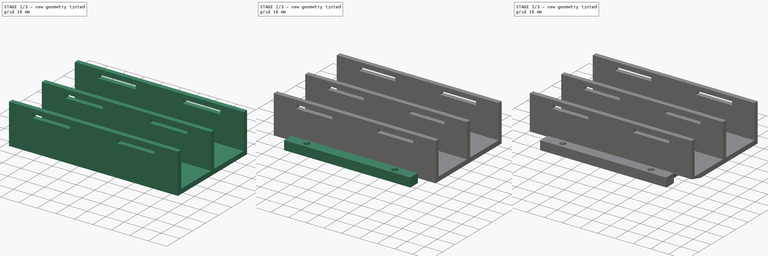
[diagram: build sequence overview — one tinted view per stage of 3, left to right]
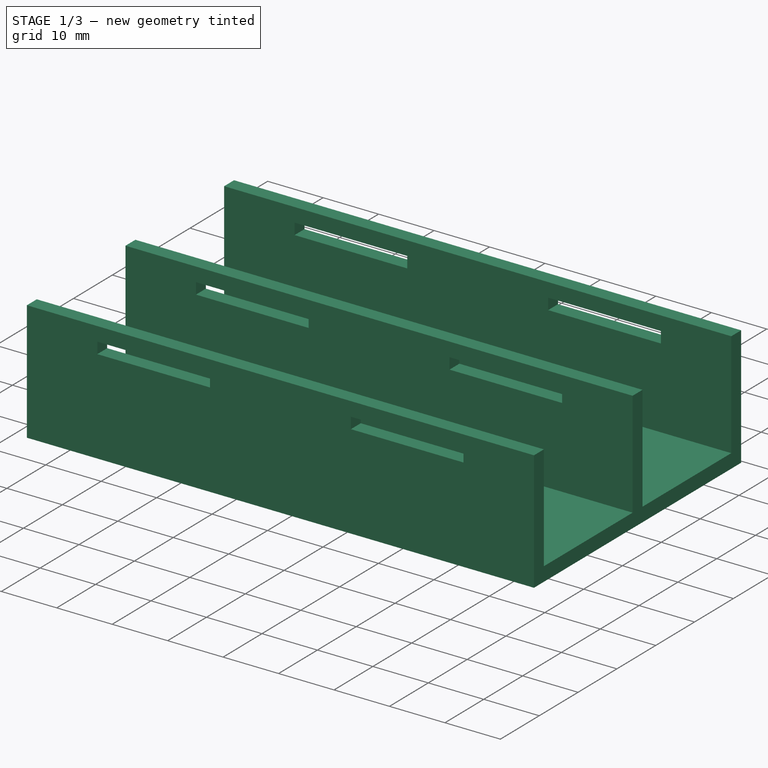
[diagram: stage 1 of 3 — iso view after this stage's code; geometry added in this stage tinted green]
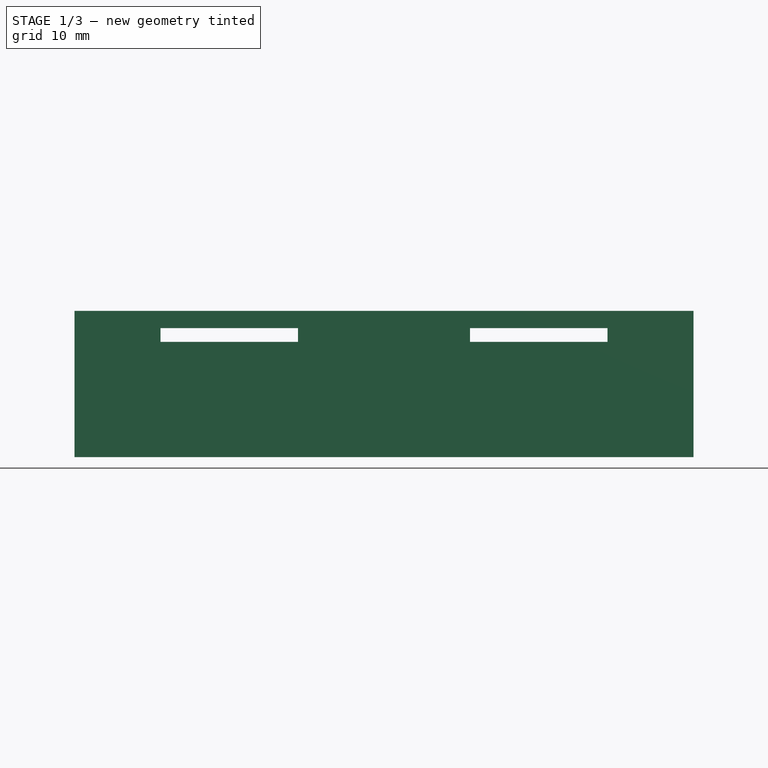
[diagram: stage 1 of 3 — front view after this stage's code; geometry added in this stage tinted green]
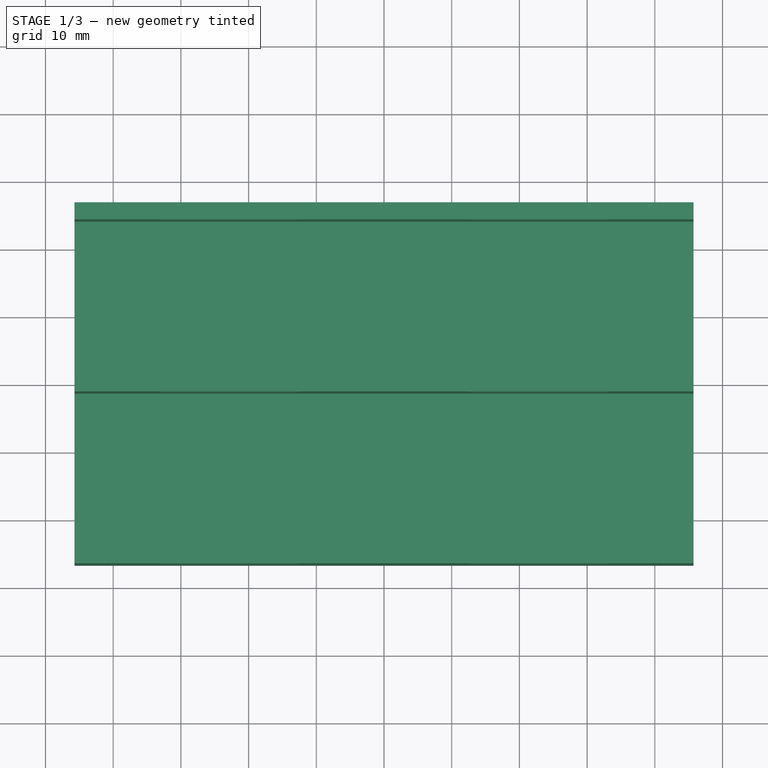
[diagram: stage 1 of 3 — top view after this stage's code; geometry added in this stage tinted green]
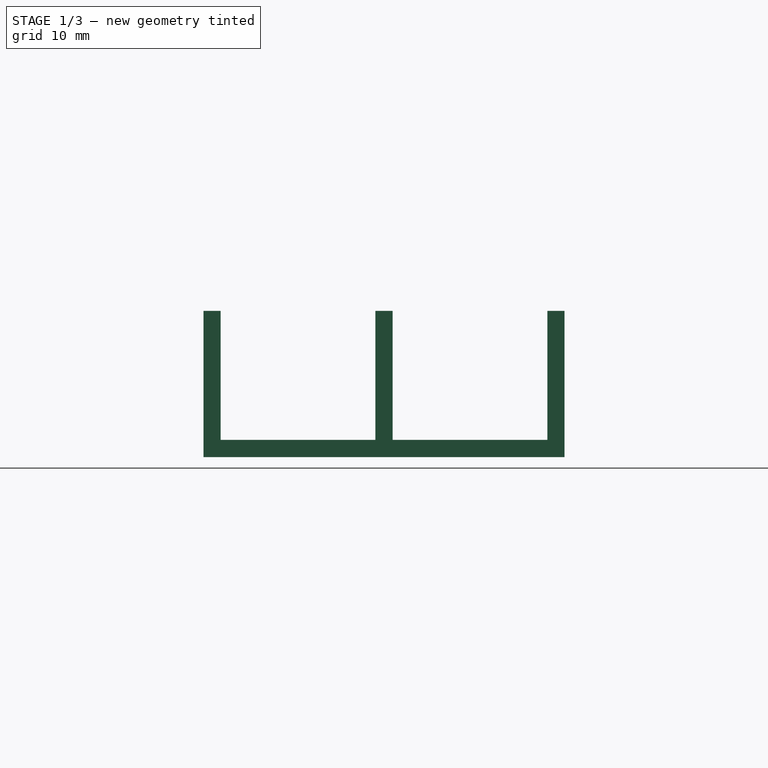
[diagram: stage 1 of 3 — right view after this stage's code; geometry added in this stage tinted green]
FCSTD DOCUMENT  (FreeCAD 1.0R39109 (Git))
Label: Rear Battery Mounts
License: All rights reserved
LicenseURL: https://en.wikipedia.org/wiki/All_rights_reserved
objects: Sketcher::SketchObject×6, PartDesign::Pad×3, PartDesign::Hole×2, PartDesign::Pocket×1, PartDesign::Chamfer×1, PartDesign::Body×1
note: 34 computed .brp shape members not serialized (recipe doc carries the construction recipe); baked Part::Feature solids carry a one-line shape summary decoded from their .brp

FEATURE [Sketcher::SketchObject] Sketch
  ArcFitTolerance = 1e-06
  AttachmentSupport = -> [YZ_Plane]
  FullyConstrained = true
  MakeInternals = false
  MapMode = 5
  Placement = pos=(0,0,0) rot=(0.57735,0.57735,0.57735;2.0944rad)
  sketch-geometry (14):
    g0: LineSegment StartX=-26.67 StartY=21.59 StartZ=0 EndX=-26.67 EndY=0 EndZ=0
    g1: LineSegment StartX=-26.67 StartY=0 StartZ=0 EndX=26.67 EndY=0 EndZ=0
    g2: LineSegment StartX=26.67 StartY=0 StartZ=0 EndX=26.67 EndY=21.59 EndZ=0
    g3: LineSegment StartX=26.67 StartY=21.59 StartZ=0 EndX=24.13 EndY=21.59 EndZ=0
    g4: LineSegment StartX=24.13 StartY=21.59 StartZ=0 EndX=24.13 EndY=2.54 EndZ=0
    g5: LineSegment StartX=24.13 StartY=2.54 StartZ=0 EndX=1.27 EndY=2.54 EndZ=0
    g6: LineSegment StartX=1.27 StartY=2.54 StartZ=0 EndX=1.27 EndY=21.59 EndZ=0
    g7: LineSegment StartX=1.27 StartY=21.59 StartZ=0 EndX=-1.27 EndY=21.59 EndZ=0
    g8: LineSegment StartX=-1.27 StartY=21.59 StartZ=0 EndX=-1.27 EndY=2.54 EndZ=0
    g9: LineSegment StartX=-1.27 StartY=2.54 StartZ=0 EndX=-24.13 EndY=2.54 EndZ=0
    g10: LineSegment StartX=-24.13 StartY=2.54 StartZ=0 EndX=-24.13 EndY=21.59 EndZ=0
    g11: LineSegment StartX=-26.67 StartY=21.59 StartZ=0 EndX=-24.13 EndY=21.59 EndZ=0
    g12: LineSegment [constr] StartX=-24.13 StartY=2.54 StartZ=0 EndX=-24.13 EndY=0 EndZ=0
    g13: GeomPoint [constr] X=0 Y=21.59 Z=0
  constraints (38):
    c: PointOnObject(g0,g-1)
    c: Vertical(g0)
    c: Coincident(g1,g0)
    c: PointOnObject(g1,g-1)
    c: Coincident(g2,g1)
    c: Vertical(g2)
    c: Coincident(g3,g2)
    c: Horizontal(g3)
    c: Coincident(g4,g3)
    c: Vertical(g4)
    c: Coincident(g5,g4)
    c: Horizontal(g5)
    c: Coincident(g6,g5)
    c: Vertical(g6)
    c: Coincident(g7,g6)
    c: Coincident(g8,g7)
    c: Vertical(g8)
    c: Coincident(g9,g8)
    c: Horizontal(g9)
    c: Coincident(g10,g9)
    c: Vertical(g10)
    c: Coincident(g11,g0)
    c: Coincident(g11,g10)
    c: Equal(g11,g7)
    c: Equal(g7,g3)
    c: Tangent(g11,g7)
    c: Tangent(g7,g3)
    c: Equal(g9,g5)
    c: Equal(g10,g6)
    c: Coincident(g12,g9)
    c: PointOnObject(g12,g1)
    c: Vertical(g12)
    c: Equal(g12,g11)
    c: Symmetric(g7,g7,g13)
    c: Vertical(g-1,g13)
    c: DistanceX(g9,g9) = 22.86
    c: DistanceX(g11,g11) = 2.54
    c: DistanceY(g10,g10) = 19.05
FEATURE [PartDesign::Pad] Pad
  Direction = (1,0,0)
  Length = 45.72
  Length2 = 45.72
  Placement = pos=(0,0,0) rot=(1,1,1;2.0944rad)
  Profile = -> Sketch
  ReferenceAxis = -> Sketch [N_Axis]
  Refine = true
  Suppressed = false
  Type = 4
FEATURE [Sketcher::SketchObject] Sketch001
  ArcFitTolerance = 1e-06
  AttachmentSupport = -> [Pad]
  ExternalGeometry = -> [Pad]
  FullyConstrained = true
  MakeInternals = false
  MapMode = 5
  Placement = pos=(-5.9e-15,-26.67,0) rot=(0.57735,0.57735,-0.57735;2.0944rad)
  sketch-geometry (15):
    g0: LineSegment StartX=-19.05 StartY=-33.02 StartZ=0 EndX=-17.018 EndY=-33.02 EndZ=0
    g1: LineSegment StartX=-17.018 StartY=-33.02 StartZ=0 EndX=-17.018 EndY=-12.7 EndZ=0
    g2: LineSegment StartX=-17.018 StartY=-12.7 StartZ=0 EndX=-19.05 EndY=-12.7 EndZ=0
    g3: LineSegment StartX=-19.05 StartY=-12.7 StartZ=0 EndX=-19.05 EndY=-33.02 EndZ=0
    g4: LineSegment StartX=-19.05 StartY=12.7 StartZ=0 EndX=-17.018 EndY=12.7 EndZ=0
    g5: LineSegment StartX=-17.018 StartY=12.7 StartZ=0 EndX=-17.018 EndY=33.02 EndZ=0
    g6: LineSegment StartX=-17.018 StartY=33.02 StartZ=0 EndX=-19.05 EndY=33.02 EndZ=0
    g7: LineSegment StartX=-19.05 StartY=33.02 StartZ=0 EndX=-19.05 EndY=12.7 EndZ=0
    g8: LineSegment [constr] StartX=-19.05 StartY=-12.7 StartZ=0 EndX=-19.05 EndY=12.7 EndZ=0
    g9: LineSegment [constr] StartX=-19.05 StartY=12.7 StartZ=0 EndX=-21.59 EndY=12.7 EndZ=0
    g10: LineSegment [constr] StartX=-21.59 StartY=12.7 StartZ=0 EndX=-21.59 EndY=-12.7 EndZ=0
    g11: LineSegment [constr] StartX=-21.59 StartY=-12.7 StartZ=0 EndX=-19.05 EndY=-12.7 EndZ=0
    g12: GeomPoint [constr] X=-21.59 Y=3.2e-15 Z=0
    g13: LineSegment [constr] StartX=-17.018 StartY=-33.02 StartZ=0 EndX=-17.018 EndY=-45.72 EndZ=0
    g14: LineSegment [constr] StartX=-17.018 StartY=-12.7 StartZ=0 EndX=-17.018 EndY=0 EndZ=0
  constraints (40):
    c: Coincident(g0,g1)
    c: Coincident(g1,g2)
    c: Coincident(g2,g3)
    c: Coincident(g3,g0)
    c: Horizontal(g0)
    c: Horizontal(g2)
    c: Vertical(g1)
    c: Vertical(g3)
    c: Coincident(g4,g5)
    c: Coincident(g5,g6)
    c: Coincident(g6,g7)
    c: Coincident(g7,g4)
    c: Horizontal(g4)
    c: Horizontal(g6)
    c: Vertical(g5)
    c: Vertical(g7)
    c: Equal(g3,g7)
    c: Equal(g4,g2)
    c: Coincident(g8,g9)
    c: Coincident(g9,g10)
    c: Coincident(g10,g11)
    c: Coincident(g11,g8)
    c: Vertical(g8)
    c: Vertical(g10)
    c: Horizontal(g9)
    c: Horizontal(g11)
    c: Coincident(g8,g2)
    c: Coincident(g8,g4)
    c: DistanceX(g0,g0) = 2.032
    c: DistanceY(g3,g3) = 20.32
    c: Symmetric(g10,g10,g12)
    c: Symmetric(g-3,g-3,g12)
    c: Coincident(g13,g0)
    c: Vertical(g13)
    c: Coincident(g14,g1)
    c: PointOnObject(g14,g-1)
    c: Vertical(g14)
    c: PointOnObject(g13,g-4)
    c: Equal(g13,g14)
    c: DistanceX(g11,g11) = 2.54
FEATURE [PartDesign::Pocket] Pocket
  BaseFeature = -> Pad
  Direction = (0,1,0)
  Length = 5
  Length2 = 5
  Placement = pos=(0,0,0) rot=(1,1,1;2.0944rad)
  Profile = -> Sketch001
  ReferenceAxis = -> Sketch001 [N_Axis]
  Refine = true
  Suppressed = false
  Type = 1
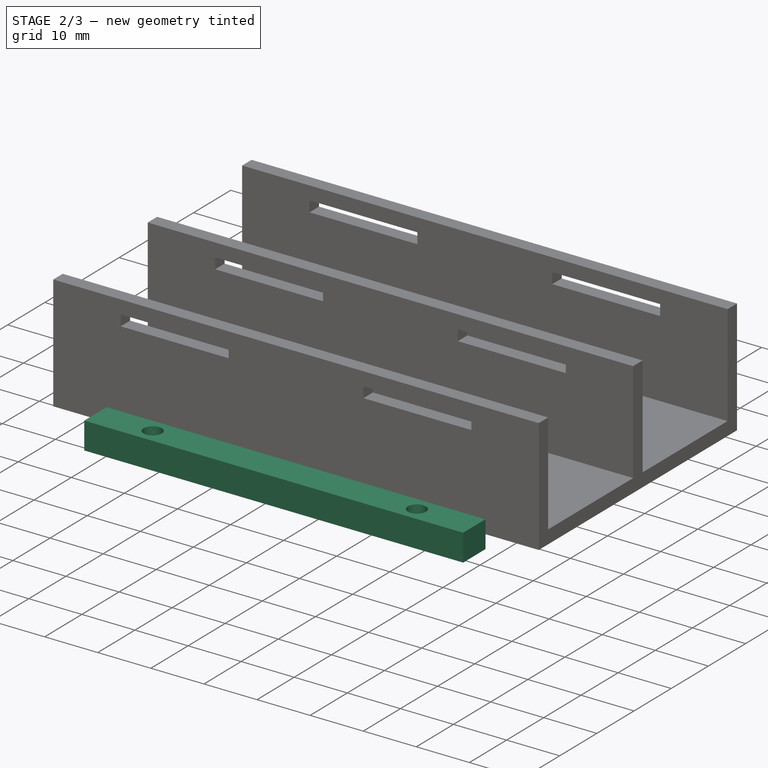
[diagram: stage 2 of 3 — iso view after this stage's code; geometry added in this stage tinted green]
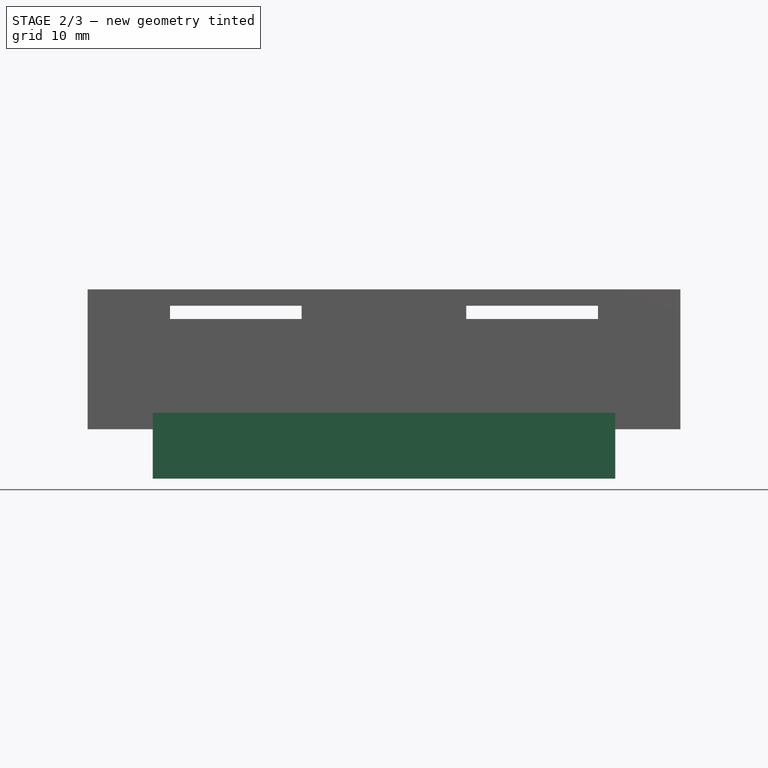
[diagram: stage 2 of 3 — front view after this stage's code; geometry added in this stage tinted green]
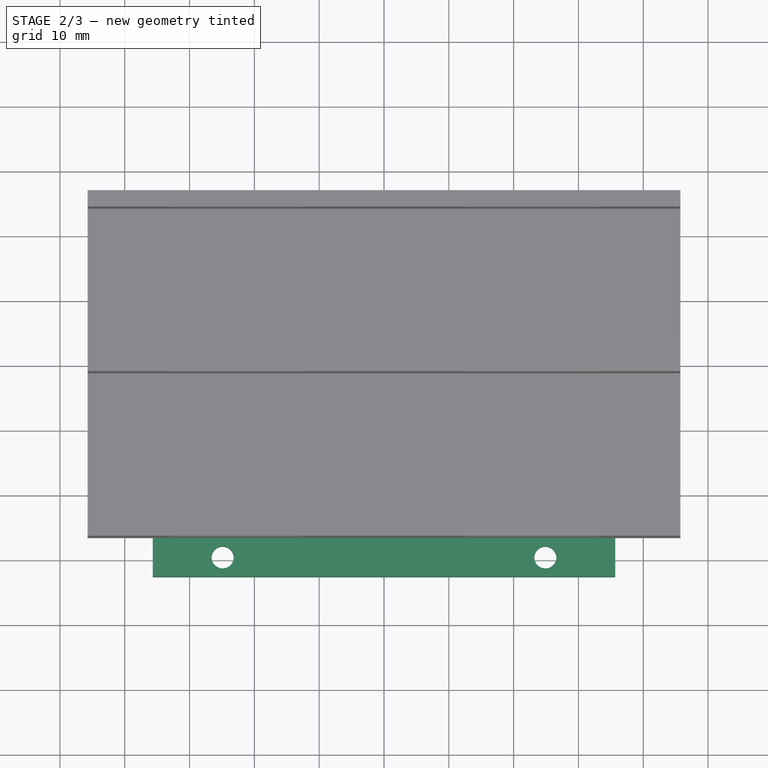
[diagram: stage 2 of 3 — top view after this stage's code; geometry added in this stage tinted green]
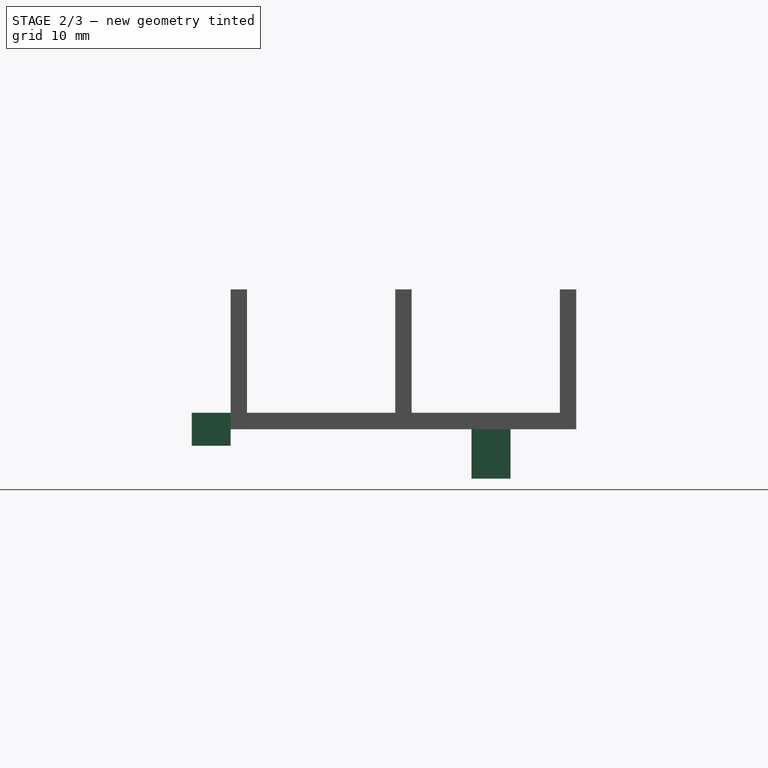
[diagram: stage 2 of 3 — right view after this stage's code; geometry added in this stage tinted green]
FEATURE [Sketcher::SketchObject] Sketch002
  ArcFitTolerance = 1e-06
  AttachmentSupport = -> [Pocket]
  ExternalGeometry = -> [Pocket]
  FullyConstrained = true
  MakeInternals = false
  MapMode = 5
  Placement = pos=(0,0,1.61e-14) rot=(0.707107,0.707107,0;3.14159rad)
  sketch-geometry (5):
    g0: LineSegment StartX=-26.67 StartY=35.687 StartZ=0 EndX=-32.67 EndY=35.687 EndZ=0
    g1: LineSegment StartX=-32.67 StartY=35.687 StartZ=0 EndX=-32.67 EndY=-35.687 EndZ=0
    g2: LineSegment StartX=-32.67 StartY=-35.687 StartZ=0 EndX=-26.67 EndY=-35.687 EndZ=0
    g3: LineSegment StartX=-26.67 StartY=-35.687 StartZ=0 EndX=-26.67 EndY=35.687 EndZ=0
    g4: GeomPoint [constr] X=-26.67 Y=5.2e-15 Z=0
  constraints (12):
    c: Coincident(g0,g1)
    c: Coincident(g1,g2)
    c: Coincident(g2,g3)
    c: Coincident(g3,g0)
    c: Horizontal(g0)
    c: Horizontal(g2)
    c: Vertical(g1)
    c: Vertical(g3)
    c: Symmetric(g3,g3,g4)
    c: Symmetric(g-3,g-3,g4)
    c: DistanceX(g2,g2) = 6
    c: DistanceY(g1,g1) = 71.374
FEATURE [PartDesign::Pad] Pad001
  BaseFeature = -> Pocket
  Direction = (0,0,-1)
  Length = 2.54
  Length2 = 2.54
  Placement = pos=(0,0,0) rot=(1,1,1;2.0944rad)
  Profile = -> Sketch002
  ReferenceAxis = -> Sketch002 [N_Axis]
  Refine = true
  Reversed = true
  Suppressed = false
  Type = 4
FEATURE [Sketcher::SketchObject] Sketch003
  ArcFitTolerance = 1e-06
  AttachmentSupport = -> [Pad001]
  ExternalGeometry = -> [Pad001]
  FullyConstrained = true
  MakeInternals = false
  MapMode = 5
  Placement = pos=(-8e-16,3e-16,2.54) rot=(0,0,-1;1.5708rad)
  sketch-geometry (5):
    g0: Circle CenterX=29.67 CenterY=-24.892 CenterZ=0 NormalX=0 NormalY=0 NormalZ=1 AngleXU=0 Radius=1.5
    g1: Circle CenterX=29.67 CenterY=24.892 CenterZ=0 NormalX=0 NormalY=0 NormalZ=1 AngleXU=0 Radius=1.5
    g2: LineSegment [constr] StartX=29.67 StartY=24.892 StartZ=0 EndX=29.67 EndY=-24.892 EndZ=0
    g3: LineSegment [constr] StartX=26.67 StartY=-2.5e-14 StartZ=0 EndX=32.67 EndY=-4.6e-15 EndZ=0
    g4: GeomPoint [constr] X=29.67 Y=-1.48e-14 Z=0
  constraints (10):
    c: Coincident(g2,g1)
    c: Coincident(g2,g0)
    c: Vertical(g2)
    c: Symmetric(g-4,g-4,g3)
    c: Symmetric(g-3,g-3,g3)
    c: Symmetric(g2,g2,g4)
    c: Symmetric(g3,g3,g4)
    c: Equal(g0,g1)
    c: Diameter(g0) = 3
    c: DistanceY(g2,g2) = 49.784
FEATURE [PartDesign::Hole] Hole
  BaseFeature = -> Pad001
  CustomThreadClearance = 0
  Depth = 224.471
  DepthType = 1
  Diameter = 3.4
  DrillForDepth = false
  DrillPoint = 1
  DrillPointAngle = 118
  HoleCutCountersinkAngle = 90
  HoleCutCustomValues = false
  HoleCutDepth = 0
  HoleCutDiameter = 0
  HoleCutType = 0
  ModelThread = false
  Placement = pos=(0,0,0) rot=(1,1,1;2.0944rad)
  Profile = -> Sketch003
  Refine = true
  Suppressed = false
  Tapered = false
  TaperedAngle = 90
  ThreadClass = 0
  ThreadDepth = 224.471
  ThreadDepthType = 0
  ThreadDirection = 0
  ThreadFit = 0
  ThreadSize = 9
  ThreadType = 1
  Threaded = false
  UseCustomThreadClearance = false
FEATURE [Sketcher::SketchObject] Sketch004
  ArcFitTolerance = 1e-06
  AttachmentSupport = -> [Hole]
  ExternalGeometry = -> [Hole]
  FullyConstrained = true
  MakeInternals = false
  MapMode = 5
  Placement = pos=(0,0,4.83e-14) rot=(0.707107,0.707107,0;3.14159rad)
  sketch-geometry (4):
    g0: LineSegment StartX=10.51 StartY=35.687 StartZ=0 EndX=10.51 EndY=-35.687 EndZ=0
    g1: LineSegment StartX=10.51 StartY=-35.687 StartZ=0 EndX=16.51 EndY=-35.687 EndZ=0
    g2: LineSegment StartX=16.51 StartY=-35.687 StartZ=0 EndX=16.51 EndY=35.687 EndZ=0
    g3: LineSegment StartX=16.51 StartY=35.687 StartZ=0 EndX=10.51 EndY=35.687 EndZ=0
  constraints (12):
    c: Coincident(g0,g1)
    c: Coincident(g1,g2)
    c: Coincident(g2,g3)
    c: Coincident(g3,g0)
    c: Vertical(g0)
    c: Vertical(g2)
    c: Horizontal(g1)
    c: Horizontal(g3)
    c: PointOnObject(g-3,g1)
    c: PointOnObject(g-3,g3)
    c: Equal(g-4,g3)
    c: Distance(g0,g-3) = 43.18
FEATURE [PartDesign::Pad] Pad002
  BaseFeature = -> Hole
  Direction = (0,0,-1)
  Length = 7.62
  Length2 = 10
  Placement = pos=(0,0,0) rot=(1,1,1;2.0944rad)
  Profile = -> Sketch004
  ReferenceAxis = -> Sketch004 [N_Axis]
  Refine = true
  Suppressed = false
  Type = 0
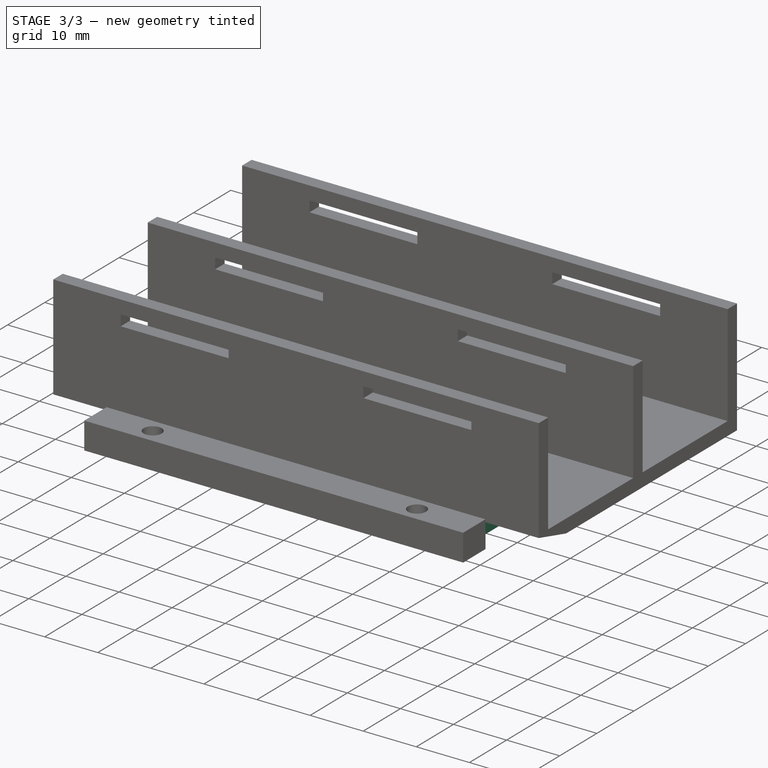
[diagram: stage 3 of 3 — iso view after this stage's code; geometry added in this stage tinted green]
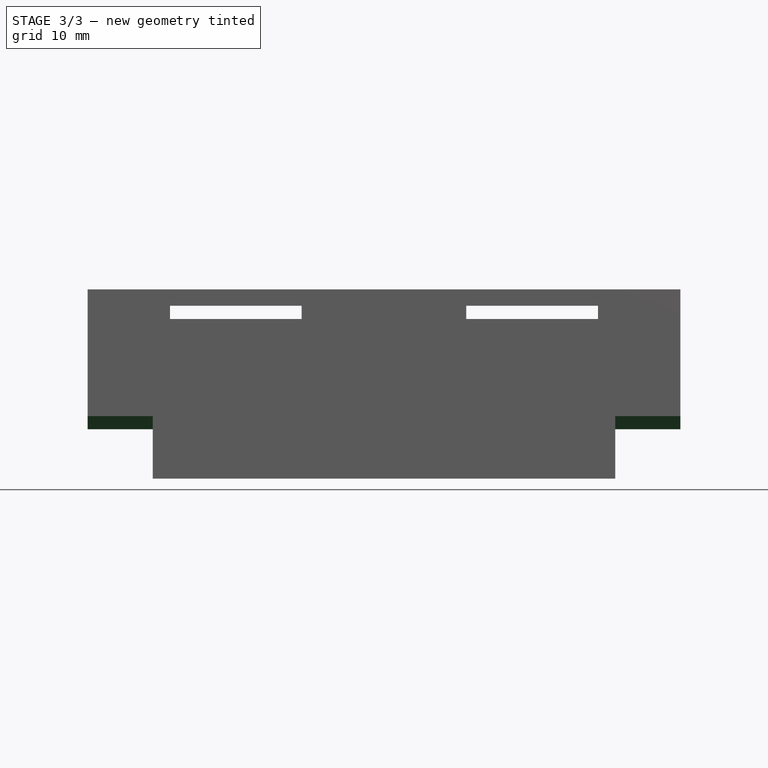
[diagram: stage 3 of 3 — front view after this stage's code; geometry added in this stage tinted green]
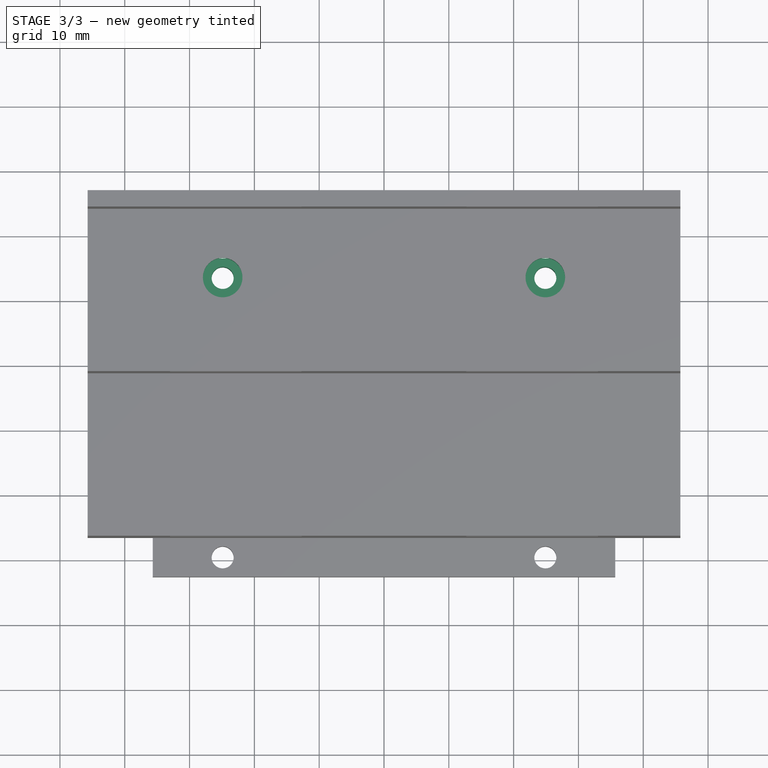
[diagram: stage 3 of 3 — top view after this stage's code; geometry added in this stage tinted green]
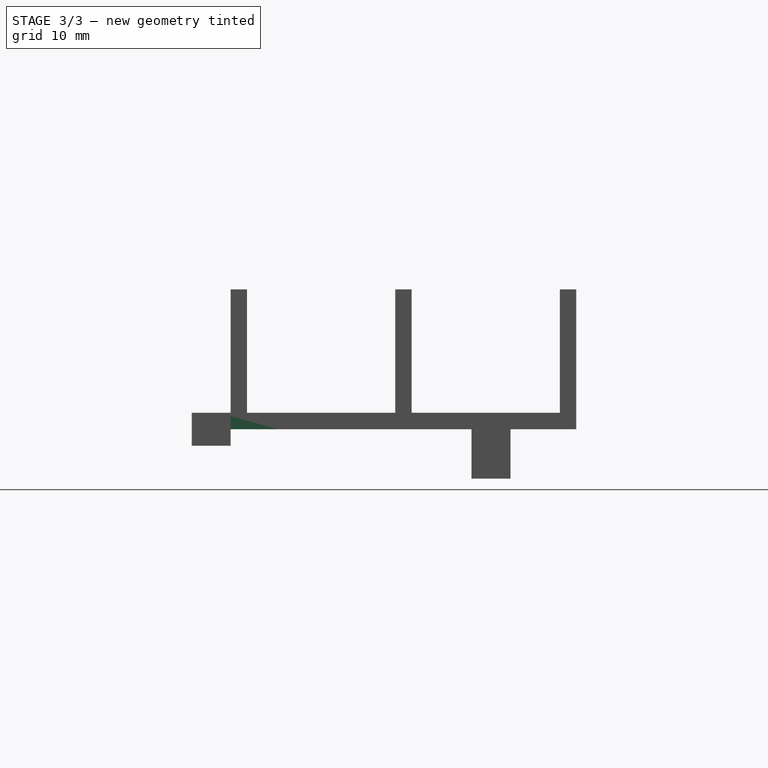
[diagram: stage 3 of 3 — right view after this stage's code; geometry added in this stage tinted green]
FEATURE [Sketcher::SketchObject] Sketch005
  ArcFitTolerance = 1e-06
  AttachmentSupport = -> [Pad002]
  ExternalGeometry = -> [Pad002]
  FullyConstrained = true
  MakeInternals = false
  MapMode = 5
  Placement = pos=(-3.4e-15,1.7e-15,2.54) rot=(0,0,-1;1.5708rad)
  sketch-geometry (5):
    g0: LineSegment [constr] StartX=-13.51 StartY=35.687 StartZ=0 EndX=-13.51 EndY=-35.687 EndZ=0
    g1: LineSegment [constr] StartX=29.67 StartY=24.892 StartZ=0 EndX=-13.51 EndY=24.892 EndZ=0
    g2: LineSegment [constr] StartX=29.67 StartY=-24.892 StartZ=0 EndX=-13.51 EndY=-24.892 EndZ=0
    g3: Circle CenterX=-13.51 CenterY=24.892 CenterZ=0 NormalX=0 NormalY=0 NormalZ=1 AngleXU=0 Radius=1.7
    g4: Circle CenterX=-13.51 CenterY=-24.892 CenterZ=0 NormalX=0 NormalY=0 NormalZ=1 AngleXU=0 Radius=1.7
  constraints (12):
    c: Symmetric(g-6,g-6,g0)
    c: Symmetric(g-5,g-5,g0)
    c: Coincident(g1,g-4)
    c: PointOnObject(g1,g0)
    c: Horizontal(g1)
    c: Coincident(g2,g-3)
    c: PointOnObject(g2,g0)
    c: Horizontal(g2)
    c: Coincident(g3,g1)
    c: Coincident(g4,g2)
    c: Equal(g-3,g4)
    c: Equal(g4,g3)
FEATURE [PartDesign::Hole] Hole001
  BaseFeature = -> Pad002
  CustomThreadClearance = 0
  Depth = 24.892
  DepthType = 0
  Diameter = 3.4
  DrillForDepth = false
  DrillPoint = 1
  DrillPointAngle = 118
  HoleCutCountersinkAngle = 90
  HoleCutCustomValues = false
  HoleCutDepth = 3.302
  HoleCutDiameter = 6.1
  HoleCutType = 1
  ModelThread = false
  Placement = pos=(0,0,0) rot=(1,1,1;2.0944rad)
  Profile = -> Sketch005
  Refine = true
  Suppressed = false
  Tapered = false
  TaperedAngle = 90
  ThreadClass = 0
  ThreadDepth = 24.892
  ThreadDepthType = 0
  ThreadDirection = 0
  ThreadFit = 0
  ThreadSize = 9
  ThreadType = 1
  Threaded = false
  UseCustomThreadClearance = false
FEATURE [PartDesign::Chamfer] Chamfer
  Angle = 45
  Base = -> Hole001 [Edge2,Edge6]
  BaseFeature = -> Hole001
  ChamferType = 1
  FlipDirection = false
  Placement = pos=(0,0,0) rot=(1,1,1;2.0944rad)
  Refine = true
  Size = 2.032
  Size2 = 7.366
  SupportTransform = false
  Suppressed = false
  UseAllEdges = false
FEATURE [PartDesign::Body] Body
  AllowCompound = false
  Group = -> [Sketch,Pad,Sketch001,Pocket,Sketch002,Pad001,Sketch003,Hole,Sketch004,Pad002,Sketch005,Hole001,Chamfer]
  Origin = -> Origin
  Tip = -> Chamfer
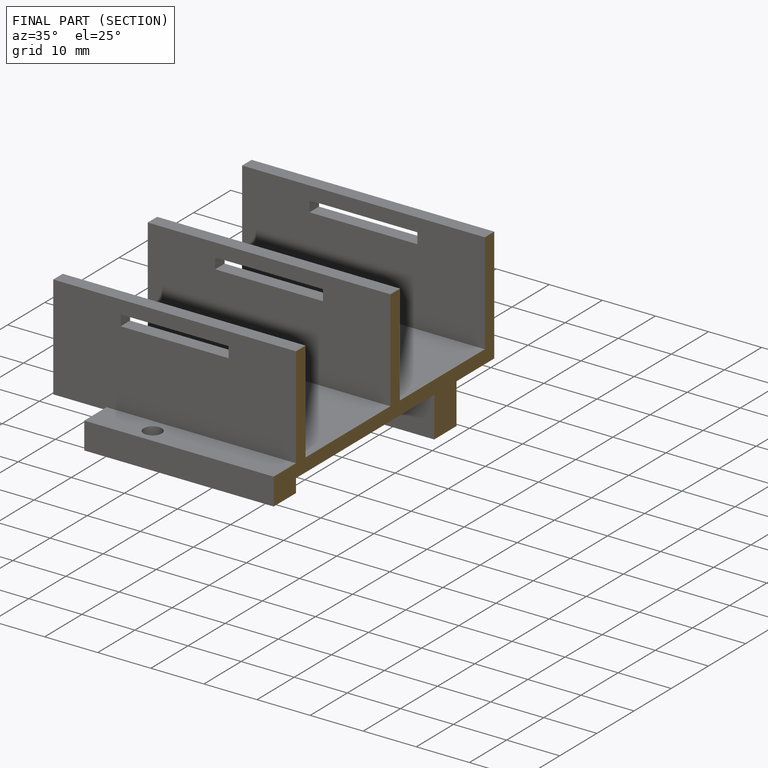
[diagram: finished part — half-section view (interior)]
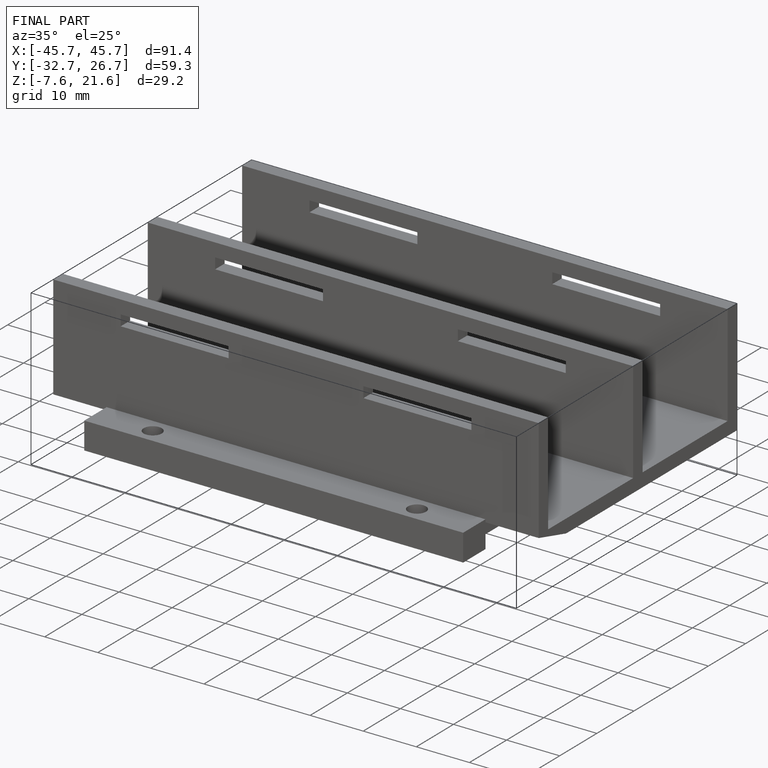
[diagram: finished part — iso view with bounding-box wireframe]
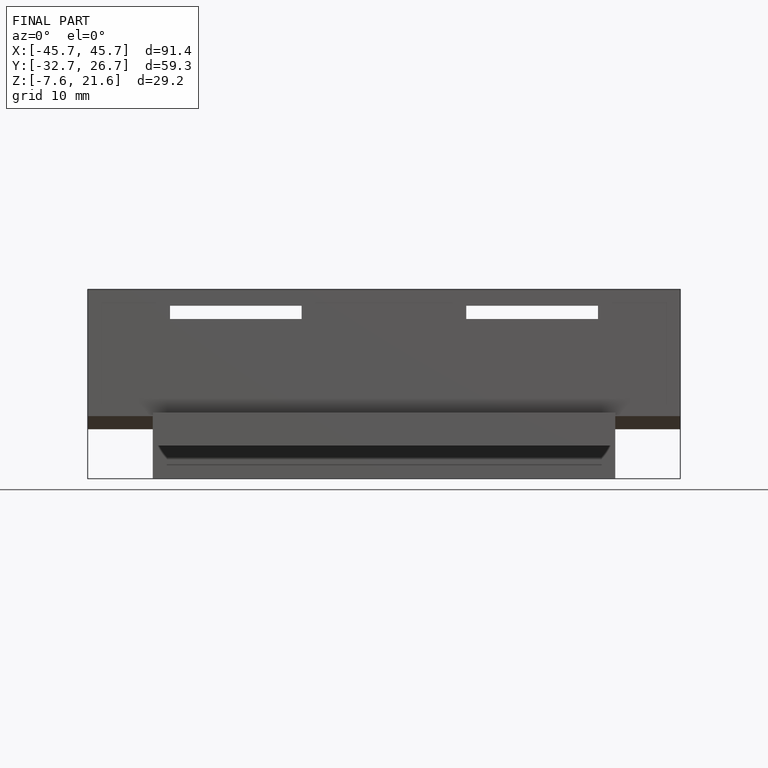
[diagram: finished part — front view with bounding-box wireframe]
